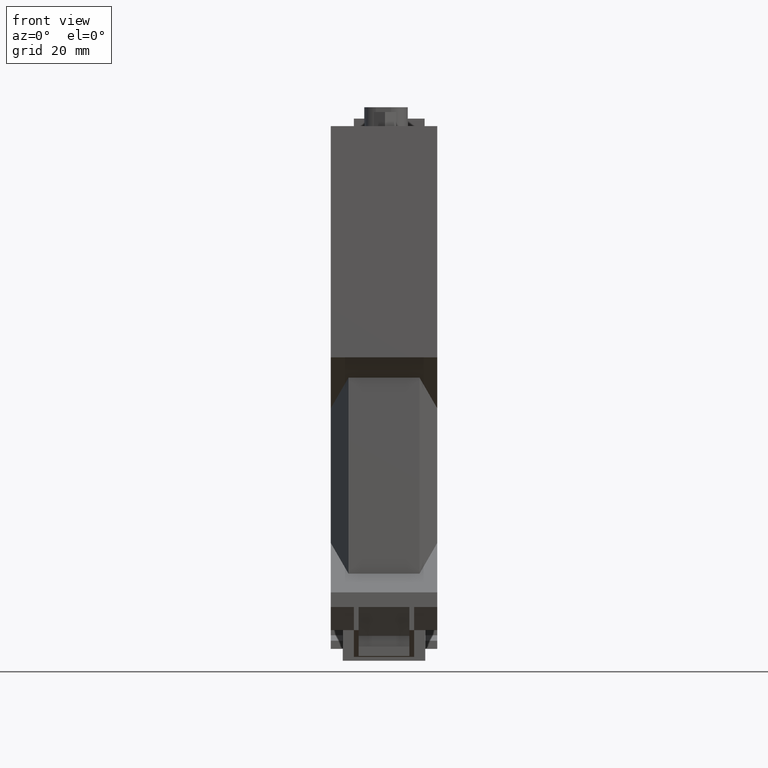
[diagram: clean part render]
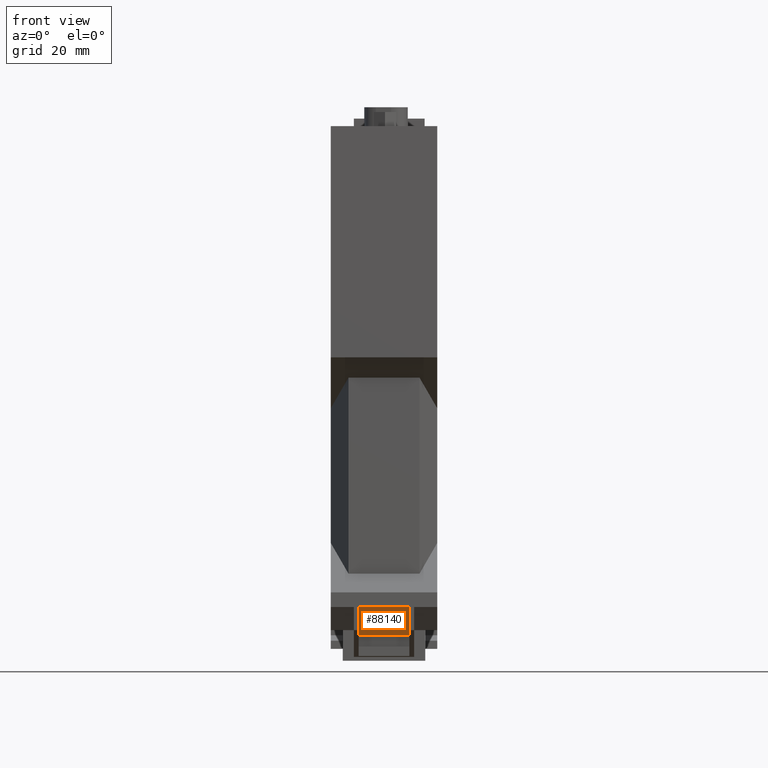
[diagram: same view with one face highlighted and labeled with its STEP entity id]
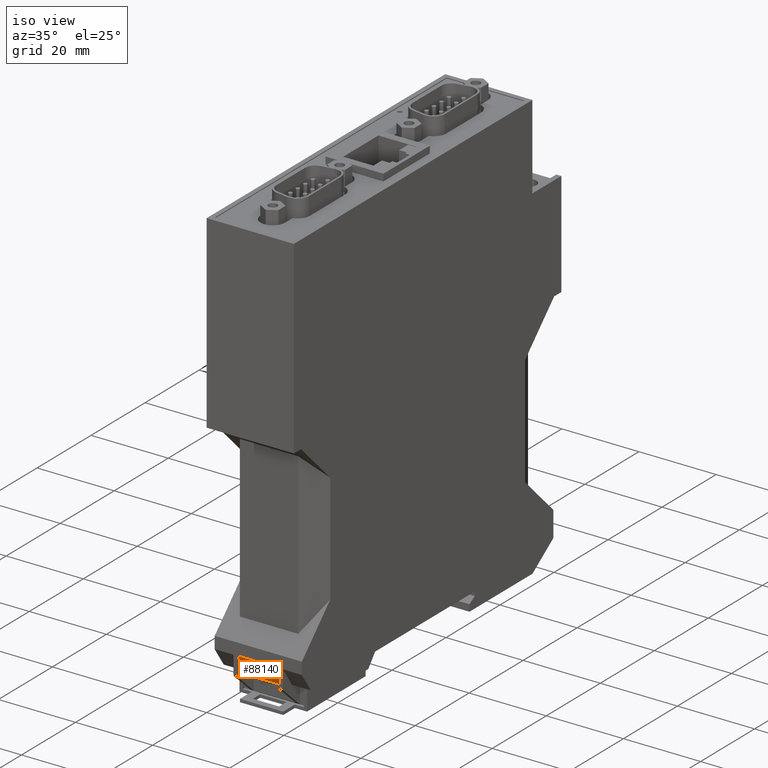
[diagram: same view with one face highlighted and labeled with its STEP entity id]
A machine part, front view. The second image highlights one B-rep face of the part: STEP entity #88140.
A second angle (iso view) of the same face is appended — the face is thin or edge-on in the first view.
In plain terms, the highlighted planar face has unit normal (0, 0.8273, 0.5618).
Its self-contained STEP definition (entity closure, byte-faithful):
#87750=CARTESIAN_POINT('',(-64.7699284064398,5.96995359610978,11.3));
#87760=DIRECTION('',(0.827270657423099,0.561803577210713,-0.));
#87770=DIRECTION('',(-0.561803577210713,0.827270657423099,0.));
#87780=AXIS2_PLACEMENT_3D('',#87750,#87760,#87770);
#87790=PLANE('',#87780);
#87800=CARTESIAN_POINT('',(-77.0142217052413,24.,5.9));
#87810=DIRECTION('',(-0.561803577210713,0.827270657423099,0.));
#87820=VECTOR('',#87810,1.);
#87830=LINE('',#87800,#87820);
#87840=CARTESIAN_POINT('',(-59.9007776120954,-1.20000000000039,5.9));
#87850=VERTEX_POINT('',#87840);
#87860=CARTESIAN_POINT('',(-64.0500000000063,4.90983993673296,5.9));
#87870=VERTEX_POINT('',#87860);
#87880=EDGE_CURVE('',#87850,#87870,#87830,.T.);
#87890=ORIENTED_EDGE('',*,*,#87880,.F.);
#87900=CARTESIAN_POINT('',(-64.0500000000063,4.90983993673297,0.));
#87910=DIRECTION('',(0.,0.,-1.));
#87920=VECTOR('',#87910,1.);
#87930=LINE('',#87900,#87920);
#87940=CARTESIAN_POINT('',(-64.0500000000063,4.90983993673296,16.7));
#87950=VERTEX_POINT('',#87940);
#87960=EDGE_CURVE('',#87950,#87870,#87930,.T.);
#87970=ORIENTED_EDGE('',*,*,#87960,.T.);
#87980=CARTESIAN_POINT('',(-77.0142217052413,24.,16.7));
#87990=DIRECTION('',(0.561803577210713,-0.827270657423099,-0.));
#88000=VECTOR('',#87990,1.);
#88010=LINE('',#87980,#88000);
#88020=CARTESIAN_POINT('',(-59.9007776120954,-1.20000000000039,16.7));
#88030=VERTEX_POINT('',#88020);
#88040=EDGE_CURVE('',#87950,#88030,#88010,.T.);
#88050=ORIENTED_EDGE('',*,*,#88040,.F.);
#88060=CARTESIAN_POINT('',(-59.9007776120955,-1.20000000000038,0.));
#88070=DIRECTION('',(0.,0.,-1.));
#88080=VECTOR('',#88070,1.);
#88090=LINE('',#88060,#88080);
#88100=EDGE_CURVE('',#88030,#87850,#88090,.T.);
#88110=ORIENTED_EDGE('',*,*,#88100,.F.);
#88120=EDGE_LOOP('',(#88110,#88050,#87970,#87890));
#88130=FACE_OUTER_BOUND('',#88120,.T.);
#88140=ADVANCED_FACE('',(#88130),#87790,.F.);